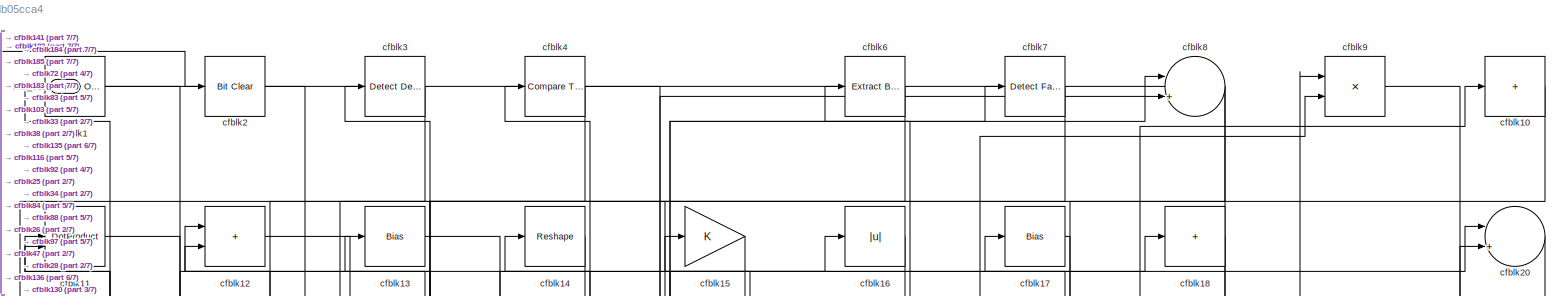
[diagram: root canvas - part 1/7, full width, top band]
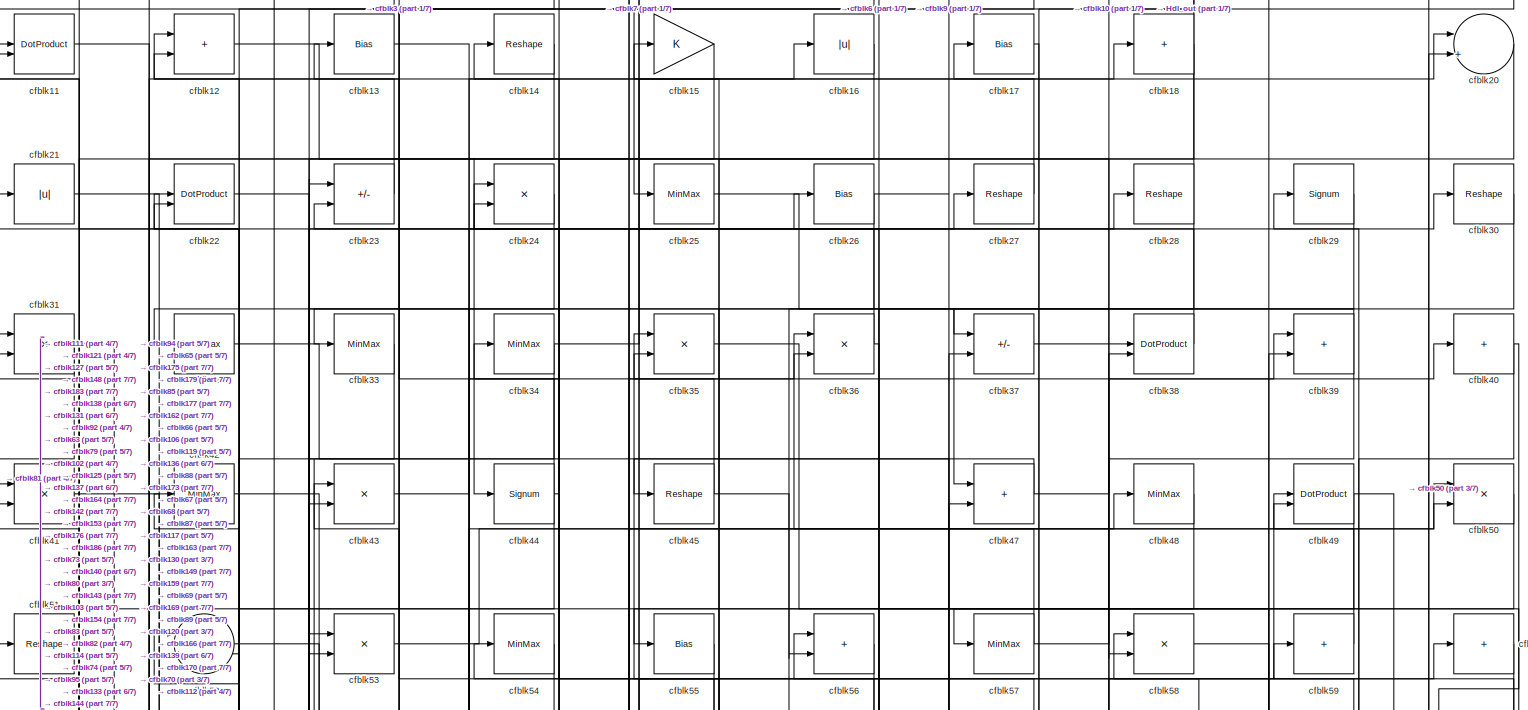
[diagram: root canvas - part 2/7, full width, top band]
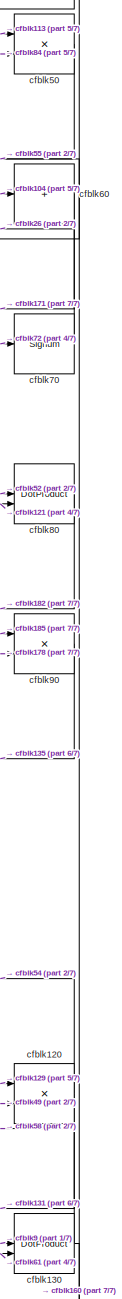
[diagram: root canvas - part 3/7, middle right region]
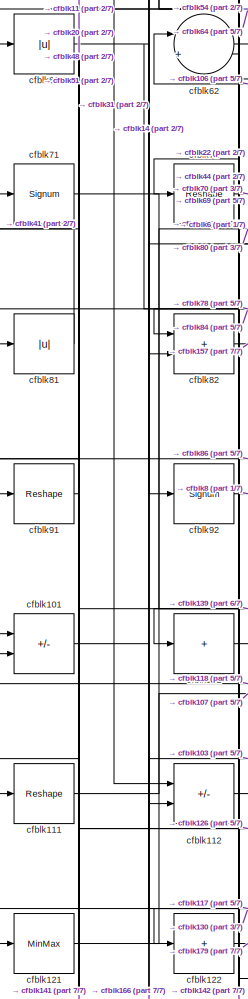
[diagram: root canvas - part 4/7, middle left region]
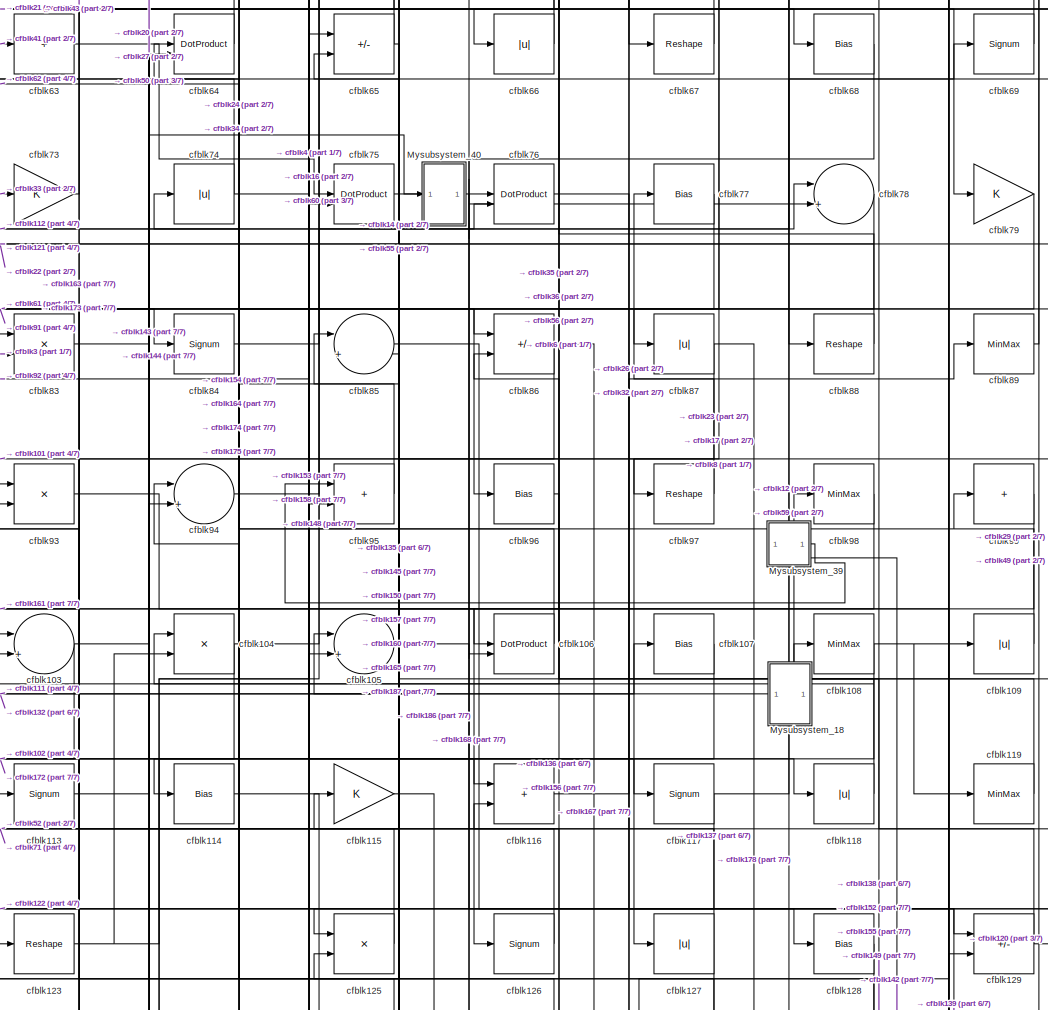
[diagram: root canvas - part 5/7, central region]
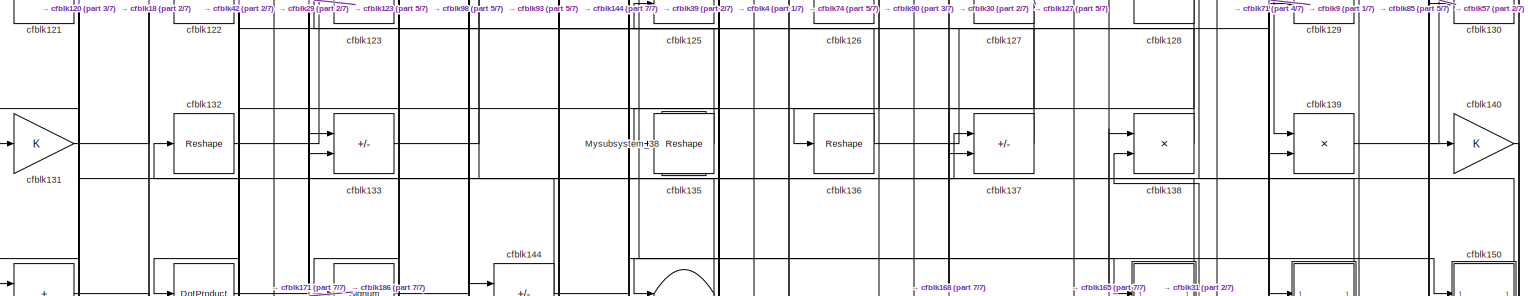
[diagram: root canvas - part 6/7, full width, bottom band]
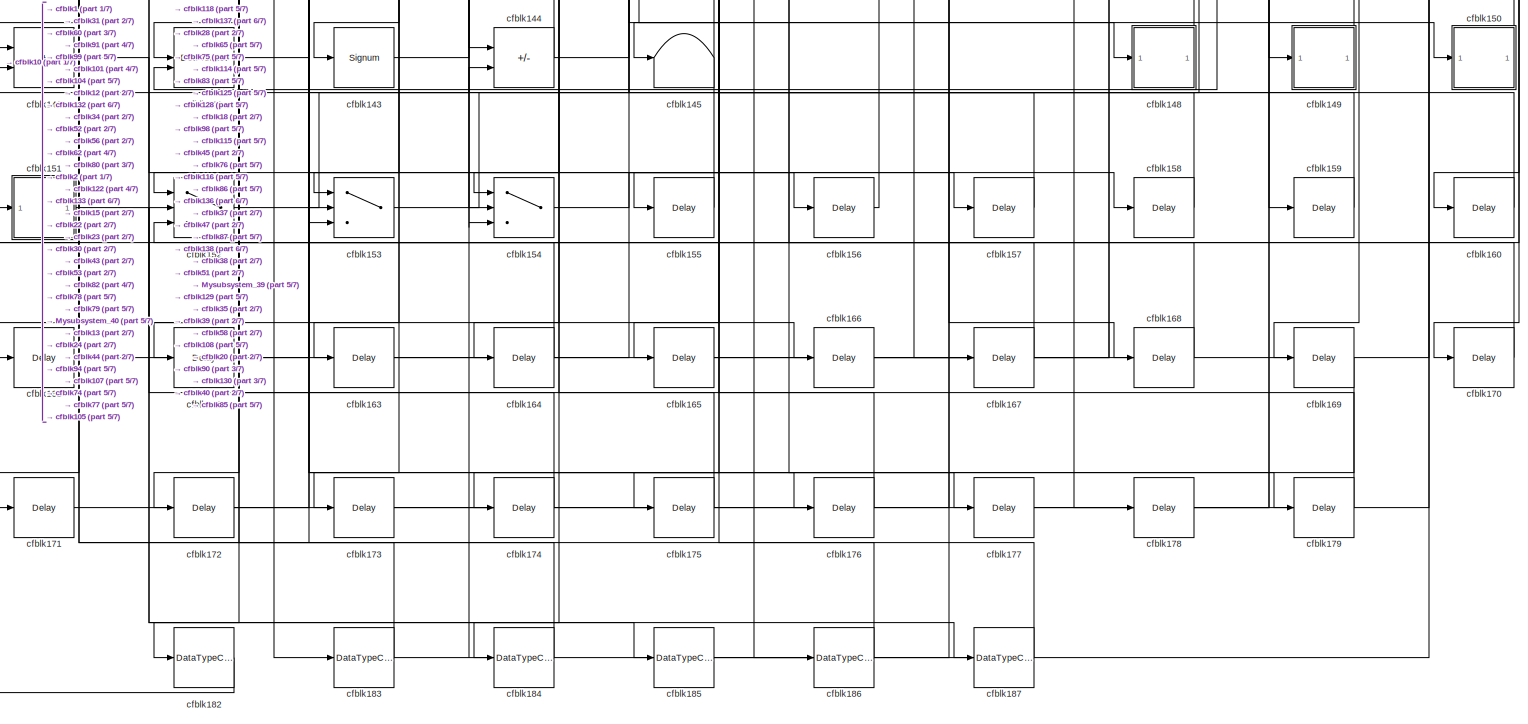
[diagram: root canvas - part 7/7, full width, bottom band]
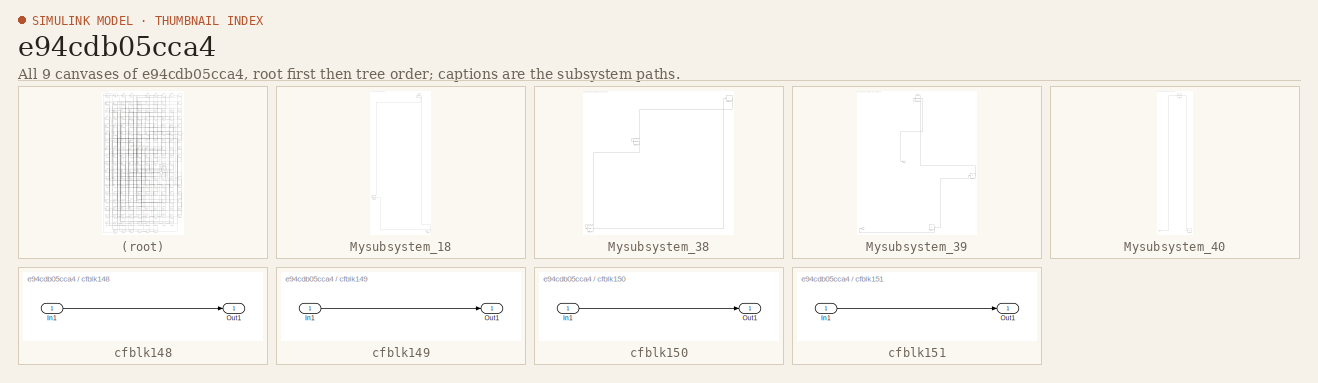
[diagram: thumbnail index - all 9 canvases of the model, root first then tree order]
MODEL slx_e94cdb05cca4
KIND model
CONFIG AbsTol = auto
CONFIG EnableMultiTasking = off
CONFIG FixedStep = auto
CONFIG MaxStep = auto
CONFIG MinStep = auto
CONFIG RelTol = 1e-3
CONFIG SampleTimeConstraint = Unconstrained
CONFIG SolverName = VariableStepAuto
CONFIG StartTime = 0.0
CONFIG StopTime = 10.0
BLOCK [Outport] Hdl_out
  OutDataTypeStr = uint8
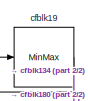
[diagram: Mysubsystem_18 - part 1/2, top right region]
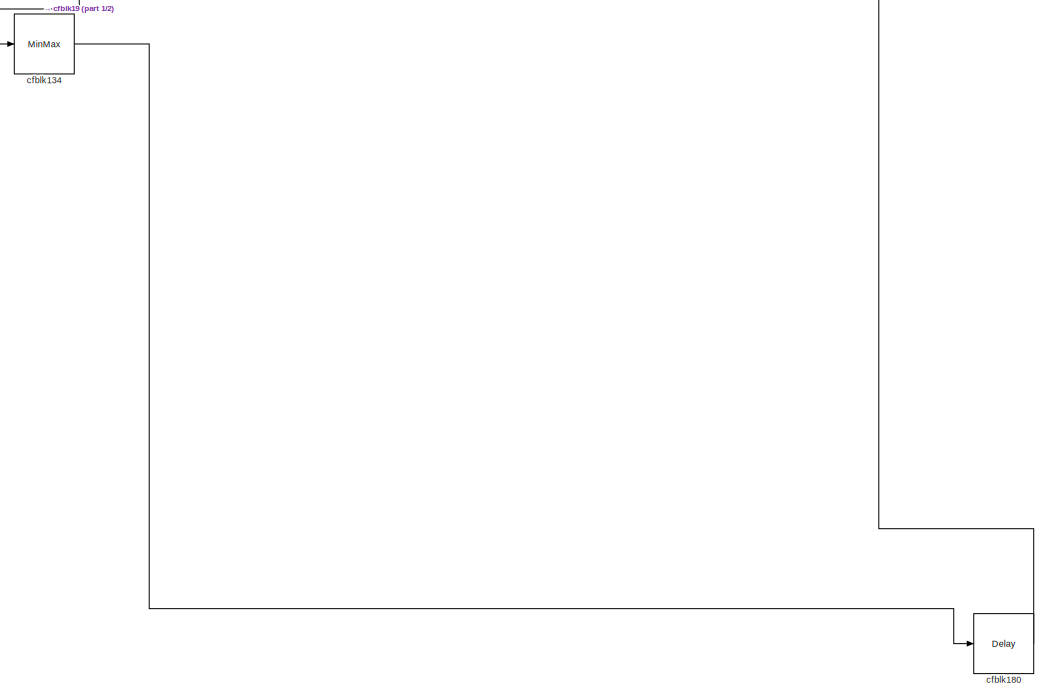
[diagram: Mysubsystem_18 - part 2/2, full width, bottom band]
BLOCK [SubSystem] Mysubsystem_18
  RTWFcnName = Mysubsystem_18
  RTWFcnNameOpts = User specified
  RTWFileNameOpts = Use function name
  RTWSystemCode = Reusable function
  TreatAsAtomicUnit = on
BLOCK [MinMax] Mysubsystem_18/cfblk134
BLOCK [Delay] Mysubsystem_18/cfblk180
  InputPortMap = u0
  SampleTime = 1
BLOCK [MinMax] Mysubsystem_18/cfblk19
BLOCK [SubSystem] Mysubsystem_38
  RTWFcnName = Mysubsystem_38
  RTWFcnNameOpts = User specified
  RTWFileNameOpts = Use function name
  RTWSystemCode = Reusable function
  TreatAsAtomicUnit = on
BLOCK [Sum] Mysubsystem_38/cfblk100
  IconShape = rectangular
  Inputs = +
BLOCK [Signum] Mysubsystem_38/cfblk124
BLOCK [Delay] Mysubsystem_38/cfblk181
  InputPortMap = u0
  SampleTime = 1
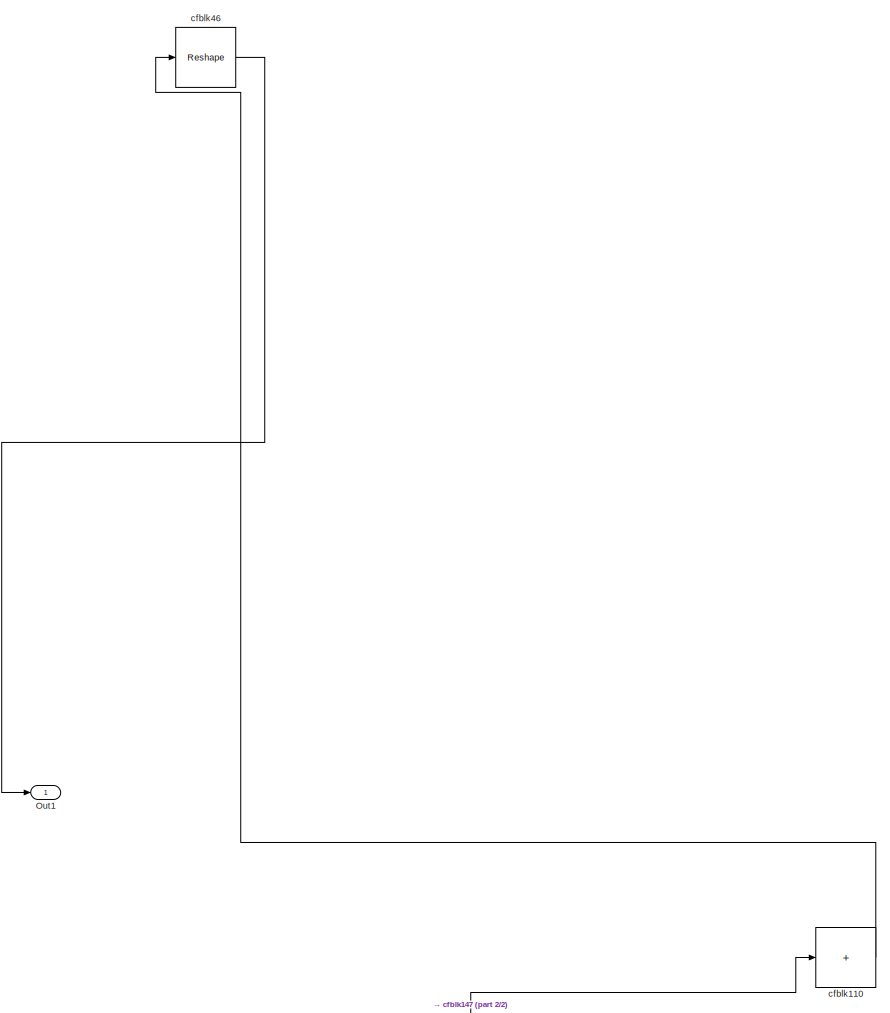
[diagram: Mysubsystem_39 - part 1/2, top right region]
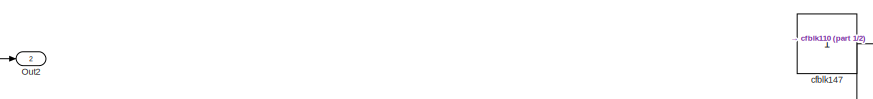
[diagram: Mysubsystem_39 - part 2/2, bottom center region]
BLOCK [SubSystem] Mysubsystem_39
  RTWFcnName = Mysubsystem_39
  RTWFcnNameOpts = User specified
  RTWFileNameOpts = Use function name
  RTWSystemCode = Reusable function
  TreatAsAtomicUnit = on
BLOCK [Outport] Mysubsystem_39/Out1
BLOCK [Outport] Mysubsystem_39/Out2
  Port = 2
BLOCK [Sum] Mysubsystem_39/cfblk110
  IconShape = rectangular
  Inputs = +
BLOCK [Constant] Mysubsystem_39/cfblk147
  SampleTime = -1
BLOCK [Reshape] Mysubsystem_39/cfblk46
BLOCK [SubSystem] Mysubsystem_40
  RTWFcnName = Mysubsystem_40
  RTWFcnNameOpts = User specified
  RTWFileNameOpts = Use function name
  RTWSystemCode = Reusable function
  TreatAsAtomicUnit = on
BLOCK [Display] Mysubsystem_40/cfblk146
  Decimation = 1
BLOCK [Reference] Mysubsystem_40/cfblk5  REF=hdlsllib/Logic and Bit
Operations/Compare
To Zero
  SourceBlock = hdlsllib/Logic and Bit\nOperations/Compare\nTo Zero
  SourceType = Compare To Zero
BLOCK [Inport] Mysubsystem_40/u
BLOCK [Reference] cfblk1  REF=simulink/Logic and Bit
Operations/Bitwise
Operator
  LibrarySourceBlock = hdlsllib/Logic and Bit\nOperations/Bitwise\nOperator
  SourceBlock = simulink/Logic and Bit\nOperations/Bitwise\nOperator
  SourceType = Bitwise Operator
BLOCK [Sum] cfblk10
  IconShape = rectangular
  Inputs = +
  OutDataTypeStr = uint8
BLOCK [Sum] cfblk101
  IconShape = rectangular
  Inputs = +-
  OutDataTypeStr = uint8
BLOCK [Sum] cfblk102
  IconShape = rectangular
  Inputs = +
  OutDataTypeStr = uint8
BLOCK [Sum] cfblk103
  Inputs = |++
  OutDataTypeStr = uint8
BLOCK [Product] cfblk104
  Inputs = */
  OutDataTypeStr = uint8
  RndMeth = Zero
  SaturateOnIntegerOverflow = on
BLOCK [Sum] cfblk105
  Inputs = |++
  OutDataTypeStr = uint8
BLOCK [DotProduct] cfblk106
  OutDataTypeStr = uint8
BLOCK [Bias] cfblk107
  Bias = 0.0
  SaturateOnIntegerOverflow = off
BLOCK [MinMax] cfblk108
  OutDataTypeStr = uint8
BLOCK [Abs] cfblk109
  OutDataTypeStr = uint8
  SaturateOnIntegerOverflow = off
BLOCK [DotProduct] cfblk11
  OutDataTypeStr = uint8
BLOCK [Reshape] cfblk111
BLOCK [Sum] cfblk112
  IconShape = rectangular
  Inputs = +-
  OutDataTypeStr = uint8
BLOCK [Signum] cfblk113
BLOCK [Bias] cfblk114
  Bias = 0.0
  SaturateOnIntegerOverflow = off
BLOCK [Gain] cfblk115
  OutDataTypeStr = uint8
BLOCK [Sum] cfblk116
  IconShape = rectangular
  OutDataTypeStr = uint8
BLOCK [Signum] cfblk117
BLOCK [Abs] cfblk118
  OutDataTypeStr = uint8
  SaturateOnIntegerOverflow = off
BLOCK [MinMax] cfblk119
  OutDataTypeStr = uint8
BLOCK [Sum] cfblk12
  IconShape = rectangular
  OutDataTypeStr = uint8
BLOCK [Product] cfblk120
  Inputs = */
  OutDataTypeStr = uint8
  RndMeth = Zero
  SaturateOnIntegerOverflow = on
BLOCK [MinMax] cfblk121
  OutDataTypeStr = uint8
BLOCK [Sum] cfblk122
  IconShape = rectangular
  Inputs = +
  OutDataTypeStr = uint8
BLOCK [Reshape] cfblk123
BLOCK [Product] cfblk125
  Inputs = */
  OutDataTypeStr = uint8
  RndMeth = Zero
  SaturateOnIntegerOverflow = on
BLOCK [Signum] cfblk126
BLOCK [Abs] cfblk127
  OutDataTypeStr = uint8
  SaturateOnIntegerOverflow = off
BLOCK [Bias] cfblk128
  Bias = 0.0
  SaturateOnIntegerOverflow = off
BLOCK [Sum] cfblk129
  IconShape = rectangular
  Inputs = +-
  OutDataTypeStr = uint8
BLOCK [Bias] cfblk13
  Bias = 0.0
  SaturateOnIntegerOverflow = off
BLOCK [DotProduct] cfblk130
  OutDataTypeStr = uint8
BLOCK [Gain] cfblk131
  OutDataTypeStr = uint8
BLOCK [Reshape] cfblk132
BLOCK [Sum] cfblk133
  IconShape = rectangular
  Inputs = +-
  OutDataTypeStr = uint8
BLOCK [Reshape] cfblk135
BLOCK [Reshape] cfblk136
BLOCK [Sum] cfblk137
  IconShape = rectangular
  Inputs = +-
  OutDataTypeStr = uint8
BLOCK [Product] cfblk138
  Inputs = */
  OutDataTypeStr = uint8
  RndMeth = Zero
  SaturateOnIntegerOverflow = on
BLOCK [Product] cfblk139
  Inputs = */
  OutDataTypeStr = uint8
  RndMeth = Zero
  SaturateOnIntegerOverflow = on
BLOCK [Reshape] cfblk14
BLOCK [Gain] cfblk140
  OutDataTypeStr = uint8
BLOCK [Sum] cfblk141
  IconShape = rectangular
  OutDataTypeStr = uint8
BLOCK [DotProduct] cfblk142
  OutDataTypeStr = uint8
BLOCK [Signum] cfblk143
BLOCK [Sum] cfblk144
  IconShape = rectangular
  Inputs = +-
  OutDataTypeStr = uint8
BLOCK [Terminator] cfblk145
BLOCK [SubSystem] cfblk148
  LibrarySourceBlock = hdlsllib/Ports &\nSubsystems/Subsystem
BLOCK [Inport] cfblk148/In1
BLOCK [Outport] cfblk148/Out1
BLOCK [SubSystem] cfblk149
  LibrarySourceBlock = hdlsllib/Ports &\nSubsystems/Subsystem
BLOCK [Inport] cfblk149/In1
BLOCK [Outport] cfblk149/Out1
BLOCK [Gain] cfblk15
  OutDataTypeStr = uint8
BLOCK [SubSystem] cfblk150
  LibrarySourceBlock = hdlsllib/Ports &\nSubsystems/Subsystem
BLOCK [Inport] cfblk150/In1
BLOCK [Outport] cfblk150/Out1
BLOCK [SubSystem] cfblk151
  LibrarySourceBlock = hdlsllib/Ports &\nSubsystems/Subsystem
BLOCK [Inport] cfblk151/In1
BLOCK [Outport] cfblk151/Out1
BLOCK [Switch] cfblk152
  InputSameDT = off
  OutDataTypeStr = uint8
  SaturateOnIntegerOverflow = off
BLOCK [Switch] cfblk153
  InputSameDT = off
  OutDataTypeStr = uint8
  SaturateOnIntegerOverflow = off
BLOCK [Switch] cfblk154
  InputSameDT = off
  OutDataTypeStr = uint8
  SaturateOnIntegerOverflow = off
BLOCK [Delay] cfblk155
  InputPortMap = u0
  SampleTime = 1
BLOCK [Delay] cfblk156
  InputPortMap = u0
  SampleTime = 1
BLOCK [Delay] cfblk157
  InputPortMap = u0
  SampleTime = 1
BLOCK [Delay] cfblk158
  InputPortMap = u0
  SampleTime = 1
BLOCK [Delay] cfblk159
  InputPortMap = u0
  SampleTime = 1
BLOCK [Abs] cfblk16
  OutDataTypeStr = uint8
  SaturateOnIntegerOverflow = off
BLOCK [Delay] cfblk160
  InputPortMap = u0
  SampleTime = 1
BLOCK [Delay] cfblk161
  InputPortMap = u0
  SampleTime = 1
BLOCK [Delay] cfblk162
  InputPortMap = u0
  SampleTime = 1
BLOCK [Delay] cfblk163
  InputPortMap = u0
  SampleTime = 1
BLOCK [Delay] cfblk164
  InputPortMap = u0
  SampleTime = 1
BLOCK [Delay] cfblk165
  InputPortMap = u0
  SampleTime = 1
BLOCK [Delay] cfblk166
  InputPortMap = u0
  SampleTime = 1
BLOCK [Delay] cfblk167
  InputPortMap = u0
  SampleTime = 1
BLOCK [Delay] cfblk168
  InputPortMap = u0
  SampleTime = 1
BLOCK [Delay] cfblk169
  InputPortMap = u0
  SampleTime = 1
BLOCK [Bias] cfblk17
  Bias = 0.0
  SaturateOnIntegerOverflow = off
BLOCK [Delay] cfblk170
  InputPortMap = u0
  SampleTime = 1
BLOCK [Delay] cfblk171
  InputPortMap = u0
  SampleTime = 1
BLOCK [Delay] cfblk172
  InputPortMap = u0
  SampleTime = 1
BLOCK [Delay] cfblk173
  InputPortMap = u0
  SampleTime = 1
BLOCK [Delay] cfblk174
  InputPortMap = u0
  SampleTime = 1
BLOCK [Delay] cfblk175
  InputPortMap = u0
  SampleTime = 1
BLOCK [Delay] cfblk176
  InputPortMap = u0
  SampleTime = 1
BLOCK [Delay] cfblk177
  InputPortMap = u0
  SampleTime = 1
BLOCK [Delay] cfblk178
  InputPortMap = u0
  SampleTime = 1
BLOCK [Delay] cfblk179
  InputPortMap = u0
  SampleTime = 1
BLOCK [Sum] cfblk18
  IconShape = rectangular
  Inputs = +
  OutDataTypeStr = uint8
BLOCK [DataTypeConversion] cfblk182
  OutDataTypeStr = uint8
  RndMeth = Floor
  SaturateOnIntegerOverflow = off
BLOCK [DataTypeConversion] cfblk183
  OutDataTypeStr = uint8
  RndMeth = Floor
  SaturateOnIntegerOverflow = off
BLOCK [DataTypeConversion] cfblk184
  OutDataTypeStr = uint8
  RndMeth = Floor
  SaturateOnIntegerOverflow = off
BLOCK [DataTypeConversion] cfblk185
  OutDataTypeStr = uint8
  RndMeth = Floor
  SaturateOnIntegerOverflow = off
BLOCK [DataTypeConversion] cfblk186
  OutDataTypeStr = uint8
  RndMeth = Floor
  SaturateOnIntegerOverflow = off
BLOCK [DataTypeConversion] cfblk187
  OutDataTypeStr = uint8
  RndMeth = Floor
  SaturateOnIntegerOverflow = off
BLOCK [Reference] cfblk2  REF=simulink/Logic and Bit
Operations/Bit Clear
  LibrarySourceBlock = hdlsllib/Logic and Bit\nOperations/Bit Clear
  SourceBlock = simulink/Logic and Bit\nOperations/Bit Clear
  SourceType = Bit Clear
BLOCK [Sum] cfblk20
  Inputs = |++
  OutDataTypeStr = uint8
BLOCK [Abs] cfblk21
  OutDataTypeStr = uint8
  SaturateOnIntegerOverflow = off
BLOCK [DotProduct] cfblk22
  OutDataTypeStr = uint8
BLOCK [Sum] cfblk23
  IconShape = rectangular
  Inputs = +-
  OutDataTypeStr = uint8
BLOCK [Product] cfblk24
  Inputs = */
  OutDataTypeStr = uint8
  RndMeth = Zero
  SaturateOnIntegerOverflow = on
BLOCK [MinMax] cfblk25
  OutDataTypeStr = uint8
BLOCK [Bias] cfblk26
  Bias = 0.0
  SaturateOnIntegerOverflow = off
BLOCK [Reshape] cfblk27
BLOCK [Reshape] cfblk28
BLOCK [Signum] cfblk29
BLOCK [Reference] cfblk3  REF=simulink/Logic and Bit
Operations/Detect
Decrease
  LibrarySourceBlock = hdlsllib/Logic and Bit\nOperations/Detect\nDecrease
  SourceBlock = simulink/Logic and Bit\nOperations/Detect\nDecrease
  SourceType = Detect Decrease
BLOCK [Reshape] cfblk30
BLOCK [Product] cfblk31
  Inputs = */
  OutDataTypeStr = uint8
  RndMeth = Zero
  SaturateOnIntegerOverflow = on
BLOCK [MinMax] cfblk32
  OutDataTypeStr = uint8
BLOCK [MinMax] cfblk33
  OutDataTypeStr = uint8
BLOCK [MinMax] cfblk34
  OutDataTypeStr = uint8
BLOCK [Product] cfblk35
  Inputs = */
  OutDataTypeStr = uint8
  RndMeth = Zero
  SaturateOnIntegerOverflow = on
BLOCK [Product] cfblk36
  Inputs = */
  OutDataTypeStr = uint8
  RndMeth = Zero
  SaturateOnIntegerOverflow = on
BLOCK [Sum] cfblk37
  IconShape = rectangular
  Inputs = +-
  OutDataTypeStr = uint8
BLOCK [DotProduct] cfblk38
  OutDataTypeStr = uint8
BLOCK [Sum] cfblk39
  IconShape = rectangular
  OutDataTypeStr = uint8
BLOCK [Reference] cfblk4  REF=hdlsllib/Logic and Bit
Operations/Compare
To Constant
  SourceBlock = hdlsllib/Logic and Bit\nOperations/Compare\nTo Constant
  SourceType = Compare To Constant
BLOCK [Sum] cfblk40
  IconShape = rectangular
  Inputs = +
  OutDataTypeStr = uint8
BLOCK [Product] cfblk41
  Inputs = */
  OutDataTypeStr = uint8
  RndMeth = Zero
  SaturateOnIntegerOverflow = on
BLOCK [MinMax] cfblk42
  OutDataTypeStr = uint8
BLOCK [Product] cfblk43
  Inputs = */
  OutDataTypeStr = uint8
  RndMeth = Zero
  SaturateOnIntegerOverflow = on
BLOCK [Signum] cfblk44
BLOCK [Reshape] cfblk45
BLOCK [Sum] cfblk47
  IconShape = rectangular
  OutDataTypeStr = uint8
BLOCK [MinMax] cfblk48
  OutDataTypeStr = uint8
BLOCK [DotProduct] cfblk49
  OutDataTypeStr = uint8
BLOCK [Product] cfblk50
  Inputs = */
  OutDataTypeStr = uint8
  RndMeth = Zero
  SaturateOnIntegerOverflow = on
BLOCK [Reshape] cfblk51
BLOCK [Sum] cfblk52
  Inputs = |++
  OutDataTypeStr = uint8
BLOCK [Product] cfblk53
  Inputs = */
  OutDataTypeStr = uint8
  RndMeth = Zero
  SaturateOnIntegerOverflow = on
BLOCK [MinMax] cfblk54
  OutDataTypeStr = uint8
BLOCK [Bias] cfblk55
  Bias = 0.0
  SaturateOnIntegerOverflow = off
BLOCK [Sum] cfblk56
  IconShape = rectangular
  OutDataTypeStr = uint8
BLOCK [MinMax] cfblk57
  OutDataTypeStr = uint8
BLOCK [Product] cfblk58
  Inputs = */
  OutDataTypeStr = uint8
  RndMeth = Zero
  SaturateOnIntegerOverflow = on
BLOCK [Sum] cfblk59
  IconShape = rectangular
  Inputs = +
  OutDataTypeStr = uint8
BLOCK [Reference] cfblk6  REF=simulink/Logic and Bit
Operations/Extract Bits
  LibrarySourceBlock = hdlsllib/Logic and Bit\nOperations/Extract Bits
  SourceBlock = simulink/Logic and Bit\nOperations/Extract Bits
  SourceType = Extract Bits
BLOCK [Sum] cfblk60
  IconShape = rectangular
  Inputs = +
  OutDataTypeStr = uint8
BLOCK [Abs] cfblk61
  OutDataTypeStr = uint8
  SaturateOnIntegerOverflow = off
BLOCK [Sum] cfblk62
  Inputs = |++
  OutDataTypeStr = uint8
BLOCK [Sum] cfblk63
  IconShape = rectangular
  Inputs = +
  OutDataTypeStr = uint8
BLOCK [DotProduct] cfblk64
  OutDataTypeStr = uint8
BLOCK [Sum] cfblk65
  IconShape = rectangular
  Inputs = +-
  OutDataTypeStr = uint8
BLOCK [Abs] cfblk66
  OutDataTypeStr = uint8
  SaturateOnIntegerOverflow = off
BLOCK [Reshape] cfblk67
BLOCK [Bias] cfblk68
  Bias = 0.0
  SaturateOnIntegerOverflow = off
BLOCK [Signum] cfblk69
BLOCK [Reference] cfblk7  REF=hdlsllib/Logic and Bit
Operations/Detect Fall
Negative
  SourceBlock = hdlsllib/Logic and Bit\nOperations/Detect Fall\nNegative
  SourceType = Detect Fall Negative
BLOCK [Signum] cfblk70
BLOCK [Signum] cfblk71
BLOCK [Reshape] cfblk72
BLOCK [Gain] cfblk73
  OutDataTypeStr = uint8
BLOCK [Abs] cfblk74
  OutDataTypeStr = uint8
  SaturateOnIntegerOverflow = off
BLOCK [DotProduct] cfblk75
  OutDataTypeStr = uint8
BLOCK [DotProduct] cfblk76
  OutDataTypeStr = uint8
BLOCK [Bias] cfblk77
  Bias = 0.0
  SaturateOnIntegerOverflow = off
BLOCK [Sum] cfblk78
  Inputs = |++
  OutDataTypeStr = uint8
BLOCK [Gain] cfblk79
  OutDataTypeStr = uint8
BLOCK [Sum] cfblk8
  Inputs = |++
  OutDataTypeStr = uint8
BLOCK [DotProduct] cfblk80
  OutDataTypeStr = uint8
BLOCK [Abs] cfblk81
  OutDataTypeStr = uint8
  SaturateOnIntegerOverflow = off
BLOCK [Sum] cfblk82
  IconShape = rectangular
  OutDataTypeStr = uint8
BLOCK [Product] cfblk83
  Inputs = */
  OutDataTypeStr = uint8
  RndMeth = Zero
  SaturateOnIntegerOverflow = on
BLOCK [Signum] cfblk84
BLOCK [Sum] cfblk85
  Inputs = |++
  OutDataTypeStr = uint8
BLOCK [Sum] cfblk86
  IconShape = rectangular
  Inputs = +-
  OutDataTypeStr = uint8
BLOCK [Abs] cfblk87
  OutDataTypeStr = uint8
  SaturateOnIntegerOverflow = off
BLOCK [Reshape] cfblk88
BLOCK [MinMax] cfblk89
  OutDataTypeStr = uint8
BLOCK [Product] cfblk9
  Inputs = */
  OutDataTypeStr = uint8
  RndMeth = Zero
  SaturateOnIntegerOverflow = on
BLOCK [Product] cfblk90
  Inputs = */
  OutDataTypeStr = uint8
  RndMeth = Zero
  SaturateOnIntegerOverflow = on
BLOCK [Reshape] cfblk91
BLOCK [Signum] cfblk92
BLOCK [Product] cfblk93
  Inputs = */
  OutDataTypeStr = uint8
  RndMeth = Zero
  SaturateOnIntegerOverflow = on
BLOCK [Sum] cfblk94
  Inputs = |++
  OutDataTypeStr = uint8
BLOCK [Sum] cfblk95
  IconShape = rectangular
  OutDataTypeStr = uint8
BLOCK [Bias] cfblk96
  Bias = 0.0
  SaturateOnIntegerOverflow = off
BLOCK [Reshape] cfblk97
BLOCK [MinMax] cfblk98
  OutDataTypeStr = uint8
BLOCK [Sum] cfblk99
  IconShape = rectangular
  Inputs = +
  OutDataTypeStr = uint8
LINE Mysubsystem_18/cfblk134:1 -> Mysubsystem_18/cfblk180:1
LINE Mysubsystem_18/cfblk180:1 -> Mysubsystem_18/cfblk19:1
LINE Mysubsystem_18/cfblk19:1 -> Mysubsystem_18/cfblk134:1
LINE Mysubsystem_38/cfblk100:1 -> Mysubsystem_38/cfblk124:1
LINE Mysubsystem_38/cfblk124:1 -> Mysubsystem_38/cfblk181:1
LINE Mysubsystem_38/cfblk181:1 -> Mysubsystem_38/cfblk100:1
LINE Mysubsystem_39/cfblk110:1 -> Mysubsystem_39/cfblk46:1
NET Mysubsystem_39/cfblk147:1 -> Mysubsystem_39/Out2:1, Mysubsystem_39/cfblk110:1
LINE Mysubsystem_39/cfblk46:1 -> Mysubsystem_39/Out1:1
LINE Mysubsystem_39:1 -> cfblk95:1
LINE Mysubsystem_39:2 -> cfblk142:2
LINE Mysubsystem_40/cfblk5:1 -> Mysubsystem_40/cfblk146:1
LINE Mysubsystem_40/u:1 -> Mysubsystem_40/cfblk5:1
LINE cfblk101:1 -> cfblk166:1
LINE cfblk102:1 -> cfblk117:1
NET cfblk103:1 -> cfblk112:2, cfblk27:1
NET cfblk104:1 -> cfblk172:1, cfblk60:1
LINE cfblk105:1 -> cfblk129:1
LINE cfblk106:1 -> cfblk62:1
LINE cfblk107:1 -> cfblk164:1
NET cfblk108:1 -> cfblk109:1, cfblk119:1, cfblk163:1
NET cfblk109:1 -> cfblk64:1, cfblk99:1
LINE cfblk10:1 -> cfblk141:2
LINE cfblk111:1 -> cfblk107:1
NET cfblk112:1 -> cfblk22:1, cfblk69:1
LINE cfblk113:1 -> cfblk50:1
LINE cfblk114:1 -> cfblk148:1
LINE cfblk115:1 -> cfblk186:1
LINE cfblk116:1 -> cfblk89:1
NET cfblk117:1 -> cfblk122:1, cfblk59:1
NET cfblk118:1 -> cfblk101:1, cfblk86:2
LINE cfblk119:1 -> cfblk56:1
LINE cfblk11:1 -> cfblk92:1
NET cfblk120:1 -> cfblk131:1, cfblk54:1
NET cfblk121:1 -> cfblk11:2, cfblk76:2, cfblk80:2
NET cfblk122:1 -> cfblk103:2, cfblk179:1
NET cfblk123:1 -> cfblk104:2, cfblk78:1
LINE cfblk125:1 -> cfblk52:1
LINE cfblk126:1 -> cfblk71:1
NET cfblk127:1 -> cfblk137:2, cfblk41:2
NET cfblk128:1 -> cfblk152:1, cfblk155:1
NET cfblk129:1 -> cfblk120:1, cfblk65:2, cfblk93:1
LINE cfblk12:1 -> cfblk88:1
NET cfblk130:1 -> cfblk160:1, cfblk58:1
LINE cfblk131:1 -> cfblk18:1
LINE cfblk132:1 -> cfblk98:1
LINE cfblk133:1 -> cfblk39:1
NET cfblk135:1 -> cfblk123:1, cfblk4:1
NET cfblk136:1 -> cfblk168:1, cfblk93:2, cfblk9:1
LINE cfblk137:1 -> cfblk42:1
LINE cfblk138:1 -> cfblk74:1
LINE cfblk139:1 -> cfblk57:1
LINE cfblk13:1 -> cfblk144:1
LINE cfblk140:1 -> cfblk31:1
LINE cfblk141:1 -> cfblk156:1
NET cfblk142:1 -> cfblk30:1, cfblk62:2
LINE cfblk143:1 -> Mysubsystem_40:1
NET cfblk144:1 -> cfblk118:1, cfblk137:1, cfblk28:1
LINE cfblk148/In1:1 -> cfblk148/Out1:1
LINE cfblk148:1 -> cfblk51:1
LINE cfblk149/In1:1 -> cfblk149/Out1:1
LINE cfblk149:1 -> cfblk108:1
LINE cfblk14:1 -> cfblk82:2
LINE cfblk150/In1:1 -> cfblk150/Out1:1
LINE cfblk150:1 -> cfblk85:1
LINE cfblk151/In1:1 -> cfblk151/Out1:1
LINE cfblk151:1 -> cfblk187:1
LINE cfblk152:1 -> cfblk94:2
LINE cfblk153:1 -> cfblk105:2
LINE cfblk154:1 -> cfblk158:1
LINE cfblk155:1 -> cfblk83:1
LINE cfblk156:1 -> cfblk116:2
LINE cfblk157:1 -> cfblk105:1
LINE cfblk158:1 -> cfblk65:1
LINE cfblk159:1 -> cfblk23:1
NET cfblk15:1 -> cfblk153:3, cfblk44:1
LINE cfblk160:1 -> cfblk125:2
LINE cfblk161:1 -> cfblk75:2
LINE cfblk162:1 -> cfblk43:2
LINE cfblk163:1 -> cfblk38:2
LINE cfblk164:1 -> cfblk12:2
LINE cfblk165:1 -> cfblk138:1
LINE cfblk166:1 -> cfblk20:2
LINE cfblk167:1 -> cfblk152:3
LINE cfblk168:1 -> cfblk76:1
LINE cfblk169:1 -> cfblk184:1
LINE cfblk16:1 -> cfblk114:1
LINE cfblk170:1 -> cfblk153:2
LINE cfblk171:1 -> cfblk133:1
LINE cfblk172:1 -> cfblk129:2
LINE cfblk173:1 -> cfblk37:2
LINE cfblk174:1 -> cfblk152:2
LINE cfblk175:1 -> cfblk94:1
LINE cfblk176:1 -> cfblk52:2
LINE cfblk177:1 -> cfblk39:2
LINE cfblk178:1 -> cfblk90:2
LINE cfblk179:1 -> cfblk15:1
LINE cfblk17:1 -> cfblk87:1
LINE cfblk182:1 -> cfblk2:1
NET cfblk183:1 -> cfblk144:2, cfblk151:1, cfblk31:2, cfblk47:2
LINE cfblk184:1 -> cfblk1:1
LINE cfblk185:1 -> cfblk90:1
NET cfblk186:1 -> cfblk132:1, cfblk53:1
LINE cfblk187:1 -> cfblk115:1
LINE cfblk18:1 -> cfblk175:1
LINE cfblk1:1 -> cfblk185:1
LINE cfblk20:1 -> cfblk121:1
LINE cfblk21:1 -> cfblk79:1
LINE cfblk22:1 -> cfblk176:1
LINE cfblk23:1 -> cfblk12:1
NET cfblk24:1 -> cfblk143:1, cfblk154:2
LINE cfblk25:1 -> cfblk37:1
NET cfblk26:1 -> cfblk56:2, cfblk68:1, cfblk9:2
LINE cfblk27:1 -> cfblk17:1
NET cfblk28:1 -> Hdl_out:1, cfblk47:1
NET cfblk29:1 -> cfblk133:2, cfblk85:2
LINE cfblk2:1 -> cfblk183:1
LINE cfblk30:1 -> cfblk136:1
NET cfblk31:1 -> cfblk112:1, cfblk138:2
LINE cfblk32:1 -> cfblk67:1
NET cfblk33:1 -> cfblk53:2, cfblk73:1
NET cfblk34:1 -> cfblk142:1, cfblk7:1
LINE cfblk35:1 -> cfblk149:1
NET cfblk36:1 -> cfblk11:1, cfblk66:1
LINE cfblk37:1 -> cfblk38:1
LINE cfblk38:1 -> cfblk3:1
NET cfblk39:1 -> cfblk32:1, cfblk58:2
LINE cfblk3:1 -> cfblk83:2
NET cfblk40:1 -> cfblk169:1, cfblk170:1
LINE cfblk41:1 -> cfblk63:1
LINE cfblk42:1 -> cfblk140:1
LINE cfblk43:1 -> cfblk36:1
NET cfblk44:1 -> cfblk102:1, cfblk13:1, cfblk154:3, cfblk24:2
NET cfblk45:1 -> cfblk177:1, cfblk35:2
NET cfblk47:1 -> cfblk10:1, cfblk45:1
LINE cfblk48:1 -> cfblk111:1
NET cfblk49:1 -> cfblk106:1, cfblk120:2
NET cfblk4:1 -> cfblk103:1, cfblk116:1
LINE cfblk50:1 -> cfblk55:1
LINE cfblk51:1 -> cfblk81:1
LINE cfblk52:1 -> cfblk80:1
LINE cfblk53:1 -> cfblk48:1
LINE cfblk54:1 -> cfblk82:1
LINE cfblk55:1 -> cfblk95:2
LINE cfblk56:1 -> cfblk162:1
NET cfblk57:1 -> cfblk36:2, cfblk40:1
LINE cfblk58:1 -> cfblk159:1
LINE cfblk59:1 -> cfblk49:2
LINE cfblk60:1 -> cfblk171:1
NET cfblk61:1 -> cfblk130:2, cfblk84:1
LINE cfblk62:1 -> cfblk86:1
LINE cfblk63:1 -> cfblk75:1
LINE cfblk64:1 -> cfblk61:1
NET cfblk65:1 -> cfblk125:1, cfblk14:1
LINE cfblk66:1 -> cfblk35:1
LINE cfblk67:1 -> cfblk23:2
LINE cfblk68:1 -> cfblk106:2
LINE cfblk69:1 -> cfblk49:1
NET cfblk6:1 -> cfblk25:1, cfblk72:1
LINE cfblk70:1 -> cfblk26:1
LINE cfblk71:1 -> cfblk139:2
LINE cfblk72:1 -> cfblk70:1
LINE cfblk73:1 -> cfblk43:1
NET cfblk74:1 -> cfblk150:1, cfblk174:1, cfblk21:1, cfblk34:1
LINE cfblk75:1 -> cfblk78:2
LINE cfblk76:1 -> cfblk128:1
LINE cfblk77:1 -> cfblk154:1
NET cfblk78:1 -> cfblk153:1, cfblk91:1
NET cfblk79:1 -> cfblk173:1, cfblk96:1
LINE cfblk7:1 -> cfblk33:1
LINE cfblk80:1 -> cfblk182:1
LINE cfblk81:1 -> cfblk41:1
LINE cfblk82:1 -> cfblk157:1
LINE cfblk83:1 -> cfblk20:1
NET cfblk84:1 -> cfblk50:2, cfblk8:1
LINE cfblk85:1 -> cfblk139:1
NET cfblk86:1 -> cfblk101:2, cfblk165:1, cfblk167:1
NET cfblk87:1 -> cfblk113:1, cfblk127:1, cfblk178:1
NET cfblk88:1 -> cfblk22:2, cfblk6:1
LINE cfblk89:1 -> cfblk29:1
LINE cfblk8:1 -> cfblk97:1
LINE cfblk90:1 -> cfblk135:1
LINE cfblk91:1 -> cfblk141:1
NET cfblk92:1 -> cfblk64:2, cfblk8:2
LINE cfblk93:1 -> cfblk126:1
LINE cfblk94:1 -> cfblk16:1
LINE cfblk95:1 -> cfblk24:1
LINE cfblk96:1 -> cfblk104:1
LINE cfblk97:1 -> cfblk77:1
LINE cfblk98:1 -> cfblk145:1
LINE cfblk99:1 -> cfblk161:1
LINE cfblk9:1 -> cfblk130:1
note: NET lines group one-source signal fan-out (src -> all destinations, sorted); 1:1 wires keep LINE
